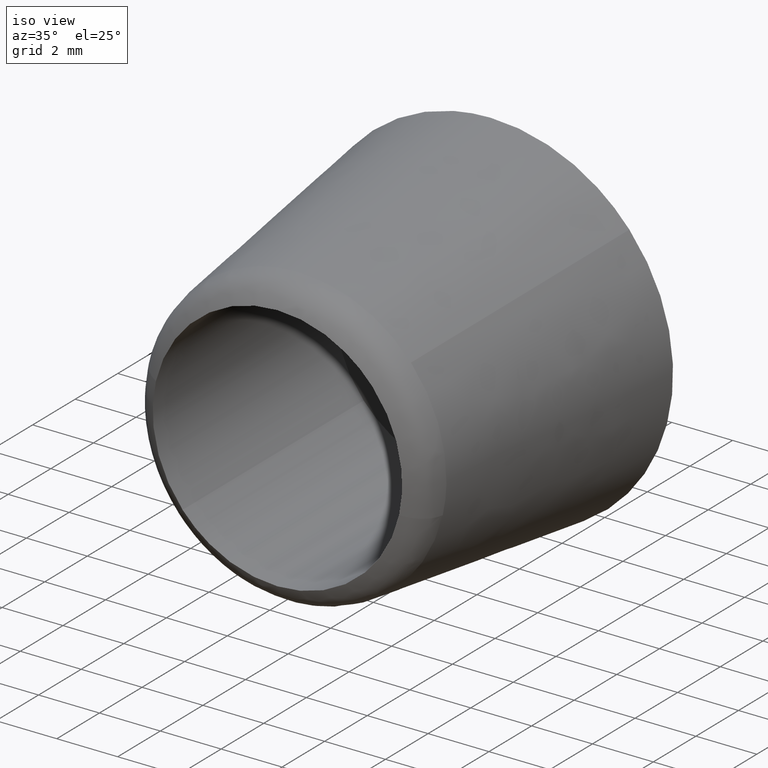
[diagram: clean part render]
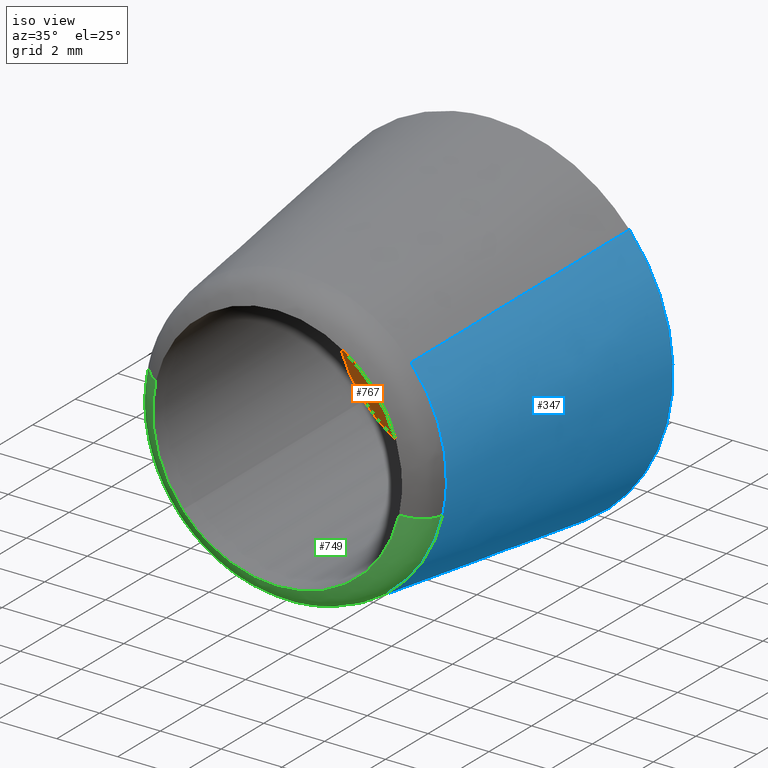
[diagram: same view with three faces highlighted in distinct colors, each labeled with its STEP entity id]
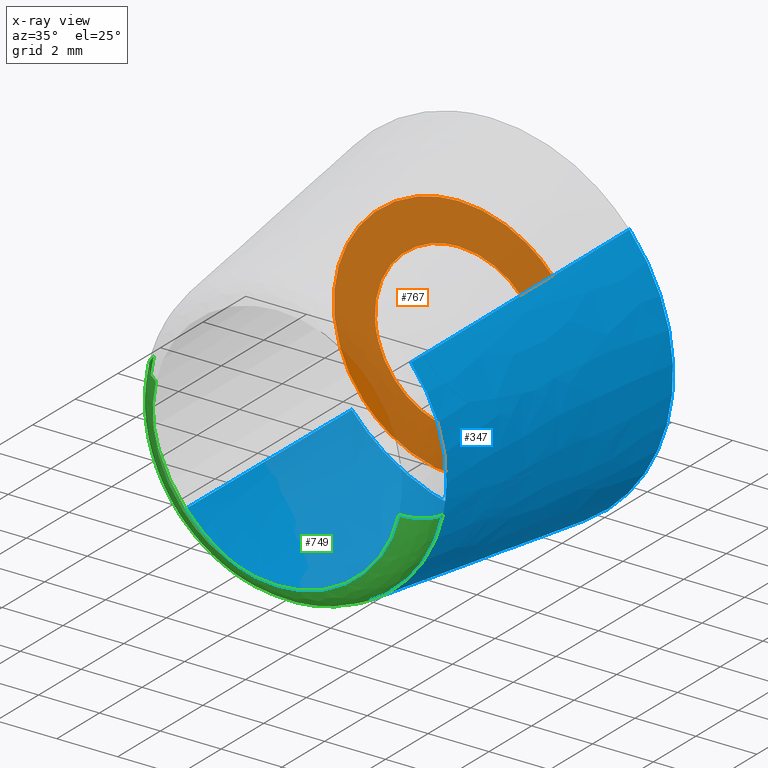
[diagram: x-ray of the same camera — body ghosted, the three highlighted faces saturated]
A machine part, iso view with three faces highlighted in distinct colors.
The next image is the same camera in x-ray (body ghosted, the three faces saturated) — at least one of them is partly hidden behind the body in this view.
Their STEP definitions:

[orange] entity #767 — the highlighted face is a freeform B-spline surface patch.
#66=CARTESIAN_POINT('',(2.730776731083356,4.981067E-014,0.324589656263510));
#67=VERTEX_POINT('',#66);
#68=CARTESIAN_POINT('',(0.0,0.0,-2.750000000000000));
#69=VERTEX_POINT('',#68);
#70=CARTESIAN_POINT('',(2.730776731083356,4.981067E-014,0.324589656263510));
#71=CARTESIAN_POINT('',(2.750000000000000,0.0,0.162864060793226));
#72=CARTESIAN_POINT('',(2.750000000000000,0.0,0.0));
#73=CARTESIAN_POINT('',(2.750000000000000,0.0,-2.750000000000000));
#74=CARTESIAN_POINT('',(0.0,0.0,-2.750000000000000));
#82=(BOUNDED_CURVE()B_SPLINE_CURVE(2,(#70,#71,#72,#73,#74),.UNSPECIFIED.,.F.,.U.)B_SPLINE_CURVE_WITH_KNOTS((3,2,3),(0.229562751335135,0.250000000000000,0.500000000000000),.UNSPECIFIED.)CURVE()GEOMETRIC_REPRESENTATION_ITEM()RATIONAL_B_SPLINE_CURVE((0.956027298726181,0.976056273819427,1.0,0.707106781186548,1.0))REPRESENTATION_ITEM(''));
#83=EDGE_CURVE('',#67,#69,#82,.T.);
#124=CARTESIAN_POINT('',(-2.744870732754064,-2.588207E-015,-0.167882877238264));
#125=VERTEX_POINT('',#124);
#131=CARTESIAN_POINT('',(0.0,0.0,-2.750000000000000));
#132=CARTESIAN_POINT('',(-2.586942829303095,0.0,-2.750000000000000));
#133=CARTESIAN_POINT('',(-2.744870732754064,-2.588207E-015,-0.167882877238264));
#141=(BOUNDED_CURVE()B_SPLINE_CURVE(2,(#131,#132,#133),.UNSPECIFIED.,.F.,.U.)B_SPLINE_CURVE_WITH_KNOTS((3,3),(0.500000000000000,0.739333038490830),.UNSPECIFIED.)CURVE()GEOMETRIC_REPRESENTATION_ITEM()RATIONAL_B_SPLINE_CURVE((1.0,0.719603903952068,0.976072205089081))REPRESENTATION_ITEM(''));
#142=EDGE_CURVE('',#69,#125,#141,.T.);
#169=CARTESIAN_POINT('',(0.0,0.0,2.750000000000000));
#170=VERTEX_POINT('',#169);
#171=CARTESIAN_POINT('',(0.0,0.0,2.750000000000000));
#172=CARTESIAN_POINT('',(2.442483989754464,0.0,2.750000000000000));
#173=CARTESIAN_POINT('',(2.730776731083356,4.981067E-014,0.324589656263510));
#181=(BOUNDED_CURVE()B_SPLINE_CURVE(2,(#171,#172,#173),.UNSPECIFIED.,.F.,.U.)B_SPLINE_CURVE_WITH_KNOTS((3,3),(0.0,0.229562751335135),.UNSPECIFIED.)CURVE()GEOMETRIC_REPRESENTATION_ITEM()RATIONAL_B_SPLINE_CURVE((1.0,0.731050507367120,0.956027298726181))REPRESENTATION_ITEM(''));
#182=EDGE_CURVE('',#170,#67,#181,.T.);
#184=CARTESIAN_POINT('',(-2.744870732754063,-2.588207E-015,-0.167882877238264));
#185=CARTESIAN_POINT('',(-2.750000000000000,0.0,-0.084019490888021));
#186=CARTESIAN_POINT('',(-2.750000000000000,0.0,0.0));
#187=CARTESIAN_POINT('',(-2.750000000000000,0.0,2.750000000000000));
#188=CARTESIAN_POINT('',(0.0,0.0,2.750000000000000));
#196=(BOUNDED_CURVE()B_SPLINE_CURVE(2,(#184,#185,#186,#187,#188),.UNSPECIFIED.,.F.,.U.)B_SPLINE_CURVE_WITH_KNOTS((3,2,3),(0.739333038490829,0.750000000000000,1.0),.UNSPECIFIED.)CURVE()GEOMETRIC_REPRESENTATION_ITEM()RATIONAL_B_SPLINE_CURVE((0.976072205089079,0.987502877234479,1.0,0.707106781186548,1.0))REPRESENTATION_ITEM(''));
#197=EDGE_CURVE('',#125,#170,#196,.T.);
#483=CARTESIAN_POINT('',(3.117664501418083,7.910339E-016,2.662736948441872));
#484=VERTEX_POINT('',#483);
#490=CARTESIAN_POINT('',(0.0,0.0,-4.100000000000001));
#491=VERTEX_POINT('',#490);
#492=CARTESIAN_POINT('',(3.117664501418083,7.910339E-016,2.662736948441872));
#493=CARTESIAN_POINT('',(4.100000000000001,0.0,1.512569781877143));
#494=CARTESIAN_POINT('',(4.100000000000001,0.0,0.0));
#495=CARTESIAN_POINT('',(4.100000000000001,0.0,-4.100000000000001));
#496=CARTESIAN_POINT('',(0.0,0.0,-4.100000000000001));
#504=(BOUNDED_CURVE()B_SPLINE_CURVE(2,(#492,#493,#494,#495,#496),.UNSPECIFIED.,.F.,.U.)B_SPLINE_CURVE_WITH_KNOTS((3,2,3),(0.136856843469953,0.250000000000000,0.500000000000000),.UNSPECIFIED.)CURVE()GEOMETRIC_REPRESENTATION_ITEM()RATIONAL_B_SPLINE_CURVE((0.854871032710290,0.867444546788801,1.0,0.707106781186547,1.0))REPRESENTATION_ITEM(''));
#505=EDGE_CURVE('',#484,#491,#504,.T.);
#507=CARTESIAN_POINT('',(-3.117664501418084,-2.081668E-016,-2.662736948441871));
#508=VERTEX_POINT('',#507);
#509=CARTESIAN_POINT('',(0.0,0.0,-4.100000000000001));
#510=CARTESIAN_POINT('',(-1.890125968421477,0.0,-4.100000000000001));
#511=CARTESIAN_POINT('',(-3.117664501418084,-2.081668E-016,-2.662736948441871));
#519=(BOUNDED_CURVE()B_SPLINE_CURVE(2,(#509,#510,#511),.UNSPECIFIED.,.F.,.U.)B_SPLINE_CURVE_WITH_KNOTS((3,3),(0.500000000000000,0.636856843469952),.UNSPECIFIED.)CURVE()GEOMETRIC_REPRESENTATION_ITEM()RATIONAL_B_SPLINE_CURVE((1.0,0.839662234397747,0.854871032710290))REPRESENTATION_ITEM(''));
#520=EDGE_CURVE('',#491,#508,#519,.T.);
#624=CARTESIAN_POINT('',(0.0,0.0,4.100000000000001));
#625=VERTEX_POINT('',#624);
#626=CARTESIAN_POINT('',(-3.117664501418084,-2.081668E-016,-2.662736948441871));
#627=CARTESIAN_POINT('',(-4.100000000000001,0.0,-1.512569781877140));
#628=CARTESIAN_POINT('',(-4.100000000000001,0.0,0.0));
#629=CARTESIAN_POINT('',(-4.100000000000001,0.0,4.100000000000001));
#630=CARTESIAN_POINT('',(0.0,0.0,4.100000000000001));
#638=(BOUNDED_CURVE()B_SPLINE_CURVE(2,(#626,#627,#628,#629,#630),.UNSPECIFIED.,.F.,.U.)B_SPLINE_CURVE_WITH_KNOTS((3,2,3),(0.636856843469953,0.750000000000000,1.0),.UNSPECIFIED.)CURVE()GEOMETRIC_REPRESENTATION_ITEM()RATIONAL_B_SPLINE_CURVE((0.854871032710290,0.867444546788801,1.0,0.707106781186547,1.0))REPRESENTATION_ITEM(''));
#639=EDGE_CURVE('',#508,#625,#638,.T.);
#641=CARTESIAN_POINT('',(0.0,0.0,4.100000000000001));
#642=CARTESIAN_POINT('',(1.890125968421488,0.0,4.100000000000001));
#643=CARTESIAN_POINT('',(3.117664501418083,7.910339E-016,2.662736948441872));
#651=(BOUNDED_CURVE()B_SPLINE_CURVE(2,(#641,#642,#643),.UNSPECIFIED.,.F.,.U.)B_SPLINE_CURVE_WITH_KNOTS((3,3),(0.0,0.136856843469953),.UNSPECIFIED.)CURVE()GEOMETRIC_REPRESENTATION_ITEM()RATIONAL_B_SPLINE_CURVE((1.0,0.839662234397746,0.854871032710290))REPRESENTATION_ITEM(''));
#652=EDGE_CURVE('',#625,#484,#651,.T.);
#750=CARTESIAN_POINT('',(-4.508338486180095,0.0,-4.509589907131077));
#751=CARTESIAN_POINT('',(-4.508338486180095,0.0,4.509590200385929));
#752=CARTESIAN_POINT('',(4.508338706121234,0.0,-4.509589907131077));
#753=CARTESIAN_POINT('',(4.508338706121234,0.0,4.509590200385929));
#754=B_SPLINE_SURFACE_WITH_KNOTS('',1,1,((#750,#752),(#751,#753)),.UNSPECIFIED.,.F.,.F.,.U.,(2,2),(2,2),(0.0,9.019180107517006),(0.0,9.016677192301328),.UNSPECIFIED.);
#755=ORIENTED_EDGE('',*,*,#639,.F.);
#756=ORIENTED_EDGE('',*,*,#520,.F.);
#757=ORIENTED_EDGE('',*,*,#505,.F.);
#758=ORIENTED_EDGE('',*,*,#652,.F.);
#759=EDGE_LOOP('',(#755,#756,#757,#758));
#760=FACE_OUTER_BOUND('',#759,.T.);
#761=ORIENTED_EDGE('',*,*,#142,.T.);
#762=ORIENTED_EDGE('',*,*,#197,.T.);
#763=ORIENTED_EDGE('',*,*,#182,.T.);
#764=ORIENTED_EDGE('',*,*,#83,.T.);
#765=EDGE_LOOP('',(#761,#762,#763,#764));
#766=FACE_BOUND('',#765,.T.);
#767=ADVANCED_FACE('',(#760,#766),#754,.F.);

[blue] entity #347 — the highlighted face is a freeform B-spline surface patch.
#234=CARTESIAN_POINT('',(3.683226864379310,-7.749889864050111,3.145772925046535));
#235=CARTESIAN_POINT('',(6.828999789425845,-7.749889864050111,-0.537453939332775));
#236=CARTESIAN_POINT('',(3.145772925046535,-7.749889864050112,-3.683226864379310));
#237=CARTESIAN_POINT('',(-0.537453939332775,-7.749889864050113,-6.828999789425845));
#238=CARTESIAN_POINT('',(-3.683226864379310,-7.749889864050113,-3.145772925046535));
#239=CARTESIAN_POINT('',(4.584416016830699,1.731247246601255,3.915461174104458));
#240=CARTESIAN_POINT('',(8.499877190935155,1.731247246601254,-0.668954842726241));
#241=CARTESIAN_POINT('',(3.915461174104458,1.731247246601254,-4.584416016830699));
#242=CARTESIAN_POINT('',(-0.668954842726241,1.731247246601253,-8.499877190935155));
#243=CARTESIAN_POINT('',(-4.584416016830699,1.731247246601253,-3.915461174104458));
#251=(BOUNDED_SURFACE()B_SPLINE_SURFACE(2,1,((#234,#239),(#235,#240),(#236,#241),(#237,#242),(#238,#243)),.UNSPECIFIED.,.F.,.F.,.U.)B_SPLINE_SURFACE_WITH_KNOTS((3,2,3),(2,2),(0.0,9.989018369856099,19.978036739712199),(0.0,9.554921391628739),.UNSPECIFIED.)GEOMETRIC_REPRESENTATION_ITEM()RATIONAL_B_SPLINE_SURFACE(((1.0,1.0),(0.707106781186548,0.707106781186548),(1.0,1.0),(0.707106781186548,0.707106781186548),(1.0,1.0)))REPRESENTATION_ITEM('')SURFACE());
#252=CARTESIAN_POINT('',(3.704671224964666,-7.524284922881888,3.164087242810569));
#253=VERTEX_POINT('',#252);
#254=CARTESIAN_POINT('',(4.747861204940968,-7.524282790642049,-1.092636051415756));
#255=VERTEX_POINT('',#254);
#256=CARTESIAN_POINT('',(3.704671224964665,-7.524284922881888,3.164087242810569));
#257=CARTESIAN_POINT('',(4.871964522502872,-7.524284143187063,1.797362154721066));
#258=CARTESIAN_POINT('',(4.871964603095937,-7.524283295292181,-0.000000040679555));
#259=CARTESIAN_POINT('',(4.871964627908664,-7.524283034245102,-0.553365984550682));
#260=CARTESIAN_POINT('',(4.747861204940968,-7.524282790642049,-1.092636051415756));
#268=(BOUNDED_CURVE()B_SPLINE_CURVE(2,(#256,#257,#258,#259,#260),.UNSPECIFIED.,.F.,.U.)B_SPLINE_CURVE_WITH_KNOTS((3,2,3),(0.136856859794303,0.250000000000000,0.288352803394359),.UNSPECIFIED.)CURVE()GEOMETRIC_REPRESENTATION_ITEM()RATIONAL_B_SPLINE_CURVE((0.854871036338518,0.867444565913966,1.0,0.955066895853227,0.923920275780370))REPRESENTATION_ITEM(''));
#269=EDGE_CURVE('',#253,#255,#268,.T.);
#270=ORIENTED_EDGE('',*,*,#269,.T.);
#271=CARTESIAN_POINT('',(0.0,-7.524282794195230,-4.871964650725590));
#272=VERTEX_POINT('',#271);
#273=CARTESIAN_POINT('',(4.747861204940968,-7.524282790642049,-1.092636051415756));
#274=CARTESIAN_POINT('',(3.878115755007902,-7.524282794195229,-4.871964650725589));
#275=CARTESIAN_POINT('',(0.0,-7.524282794195230,-4.871964650725590));
#283=(BOUNDED_CURVE()B_SPLINE_CURVE(2,(#273,#274,#275),.UNSPECIFIED.,.F.,.U.)B_SPLINE_CURVE_WITH_KNOTS((3,3),(0.288352803394359,0.500000000000000),.UNSPECIFIED.)CURVE()GEOMETRIC_REPRESENTATION_ITEM()RATIONAL_B_SPLINE_CURVE((0.923920275780370,0.752039885333320,1.0))REPRESENTATION_ITEM(''));
#284=EDGE_CURVE('',#255,#272,#283,.T.);
#285=ORIENTED_EDGE('',*,*,#284,.T.);
#286=CARTESIAN_POINT('',(-3.704671224964667,-7.524284922881888,-3.164087242810568));
#287=VERTEX_POINT('',#286);
#288=CARTESIAN_POINT('',(0.0,-7.524282794195230,-4.871964650725590));
#289=CARTESIAN_POINT('',(-2.246006779741699,-7.524283858538559,-4.871964564321126));
#290=CARTESIAN_POINT('',(-3.704671224964666,-7.524284922881888,-3.164087242810568));
#298=(BOUNDED_CURVE()B_SPLINE_CURVE(2,(#288,#289,#290),.UNSPECIFIED.,.F.,.U.)B_SPLINE_CURVE_WITH_KNOTS((3,3),(0.500000000000000,0.636856859794303),.UNSPECIFIED.)CURVE()GEOMETRIC_REPRESENTATION_ITEM()RATIONAL_B_SPLINE_CURVE((1.0,0.839662215272581,0.854871036338518))REPRESENTATION_ITEM(''));
#299=EDGE_CURVE('',#272,#287,#298,.T.);
#300=ORIENTED_EDGE('',*,*,#299,.T.);
#301=CARTESIAN_POINT('',(-4.562435850056587,1.499999495957191,-3.896688126865445));
#302=VERTEX_POINT('',#301);
#303=CARTESIAN_POINT('',(-3.704671224964667,-7.524284922881888,-3.164087242810568));
#304=CARTESIAN_POINT('',(-4.562435850056587,1.499999495957191,-3.896688126865445));
#305=QUASI_UNIFORM_CURVE('',1,(#303,#304),.UNSPECIFIED.,.F.,.U.);
#306=EDGE_CURVE('',#287,#302,#305,.T.);
#307=ORIENTED_EDGE('',*,*,#306,.T.);
#308=CARTESIAN_POINT('',(0.0,1.500000000000000,-6.0));
#309=VERTEX_POINT('',#308);
#310=CARTESIAN_POINT('',(0.0,1.500000000000000,-6.0));
#311=CARTESIAN_POINT('',(-2.766038081416517,1.500000000000000,-6.000000000000001));
#312=CARTESIAN_POINT('',(-4.562435850056587,1.499999495957191,-3.896688126865444));
#320=(BOUNDED_CURVE()B_SPLINE_CURVE(2,(#310,#311,#312),.UNSPECIFIED.,.F.,.U.)B_SPLINE_CURVE_WITH_KNOTS((3,3),(0.500000000000000,0.636856846745670),.UNSPECIFIED.)CURVE()GEOMETRIC_REPRESENTATION_ITEM()RATIONAL_B_SPLINE_CURVE((1.0,0.839662230560006,0.854871033438346))REPRESENTATION_ITEM(''));
#321=EDGE_CURVE('',#309,#302,#320,.T.);
#322=ORIENTED_EDGE('',*,*,#321,.F.);
#323=CARTESIAN_POINT('',(4.562435850056586,1.499999495957190,3.896688126865445));
#324=VERTEX_POINT('',#323);
#325=CARTESIAN_POINT('',(4.562435850056586,1.499999495957190,3.896688126865445));
#326=CARTESIAN_POINT('',(6.000000000000001,1.500000000000000,2.213516680087875));
#327=CARTESIAN_POINT('',(6.0,1.500000000000000,0.0));
#328=CARTESIAN_POINT('',(6.0,1.500000000000000,-6.0));
#329=CARTESIAN_POINT('',(0.0,1.500000000000000,-6.0));
#337=(BOUNDED_CURVE()B_SPLINE_CURVE(2,(#325,#326,#327,#328,#329),.UNSPECIFIED.,.F.,.U.)B_SPLINE_CURVE_WITH_KNOTS((3,2,3),(0.136856846745670,0.250000000000000,0.500000000000000),.UNSPECIFIED.)CURVE()GEOMETRIC_REPRESENTATION_ITEM()RATIONAL_B_SPLINE_CURVE((0.854871033438346,0.867444550626542,1.0,0.707106781186548,1.0))REPRESENTATION_ITEM(''));
#338=EDGE_CURVE('',#324,#309,#337,.T.);
#339=ORIENTED_EDGE('',*,*,#338,.F.);
#340=CARTESIAN_POINT('',(3.704671224964666,-7.524284922881888,3.164087242810569));
#341=CARTESIAN_POINT('',(4.562435850056586,1.499999495957190,3.896688126865445));
#342=QUASI_UNIFORM_CURVE('',1,(#340,#341),.UNSPECIFIED.,.F.,.U.);
#343=EDGE_CURVE('',#253,#324,#342,.T.);
#344=ORIENTED_EDGE('',*,*,#343,.F.);
#345=EDGE_LOOP('',(#270,#285,#300,#307,#322,#339,#344));
#346=FACE_OUTER_BOUND('',#345,.T.);
#347=ADVANCED_FACE('',(#346),#251,.T.);

[green] entity #749 — the highlighted face is a freeform B-spline surface patch.
#254=CARTESIAN_POINT('',(4.747861204940968,-7.524282790642049,-1.092636051415756));
#255=VERTEX_POINT('',#254);
#271=CARTESIAN_POINT('',(0.0,-7.524282794195230,-4.871964650725590));
#272=VERTEX_POINT('',#271);
#273=CARTESIAN_POINT('',(4.747861204940968,-7.524282790642049,-1.092636051415756));
#274=CARTESIAN_POINT('',(3.878115755007902,-7.524282794195229,-4.871964650725589));
#275=CARTESIAN_POINT('',(0.0,-7.524282794195230,-4.871964650725590));
#283=(BOUNDED_CURVE()B_SPLINE_CURVE(2,(#273,#274,#275),.UNSPECIFIED.,.F.,.U.)B_SPLINE_CURVE_WITH_KNOTS((3,3),(0.288352803394359,0.500000000000000),.UNSPECIFIED.)CURVE()GEOMETRIC_REPRESENTATION_ITEM()RATIONAL_B_SPLINE_CURVE((0.923920275780370,0.752039885333320,1.0))REPRESENTATION_ITEM(''));
#284=EDGE_CURVE('',#255,#272,#283,.T.);
#286=CARTESIAN_POINT('',(-3.704671224964667,-7.524284922881888,-3.164087242810568));
#287=VERTEX_POINT('',#286);
#288=CARTESIAN_POINT('',(0.0,-7.524282794195230,-4.871964650725590));
#289=CARTESIAN_POINT('',(-2.246006779741699,-7.524283858538559,-4.871964564321126));
#290=CARTESIAN_POINT('',(-3.704671224964666,-7.524284922881888,-3.164087242810568));
#298=(BOUNDED_CURVE()B_SPLINE_CURVE(2,(#288,#289,#290),.UNSPECIFIED.,.F.,.U.)B_SPLINE_CURVE_WITH_KNOTS((3,3),(0.500000000000000,0.636856859794303),.UNSPECIFIED.)CURVE()GEOMETRIC_REPRESENTATION_ITEM()RATIONAL_B_SPLINE_CURVE((1.0,0.839662215272581,0.854871036338518))REPRESENTATION_ITEM(''));
#299=EDGE_CURVE('',#272,#287,#298,.T.);
#413=CARTESIAN_POINT('',(-4.747861204940969,-7.524282790642049,1.092636051415755));
#414=VERTEX_POINT('',#413);
#415=CARTESIAN_POINT('',(-3.704671224964666,-7.524284922881888,-3.164087242810568));
#416=CARTESIAN_POINT('',(-4.871964522502873,-7.524284143187063,-1.797362154721066));
#417=CARTESIAN_POINT('',(-4.871964603095937,-7.524283295292181,0.000000040679555));
#418=CARTESIAN_POINT('',(-4.871964627908664,-7.524283034245102,0.553365984550682));
#419=CARTESIAN_POINT('',(-4.747861204940969,-7.524282790642049,1.092636051415755));
#427=(BOUNDED_CURVE()B_SPLINE_CURVE(2,(#415,#416,#417,#418,#419),.UNSPECIFIED.,.F.,.U.)B_SPLINE_CURVE_WITH_KNOTS((3,2,3),(0.636856859794303,0.750000000000000,0.788352803394359),.UNSPECIFIED.)CURVE()GEOMETRIC_REPRESENTATION_ITEM()RATIONAL_B_SPLINE_CURVE((0.854871036338518,0.867444565913966,1.0,0.955066895853227,0.923920275780370))REPRESENTATION_ITEM(''));
#428=EDGE_CURVE('',#287,#414,#427,.T.);
#466=CARTESIAN_POINT('',(3.995560178538304,-8.499999999954829,-0.919510119940747));
#467=VERTEX_POINT('',#466);
#522=CARTESIAN_POINT('',(-3.117664501935782,-8.500000000000000,-2.662736947835723));
#523=VERTEX_POINT('',#522);
#529=CARTESIAN_POINT('',(0.0,-8.500000000000000,-4.100000000000001));
#530=VERTEX_POINT('',#529);
#531=CARTESIAN_POINT('',(0.0,-8.500000000000000,-4.100000000000001));
#532=CARTESIAN_POINT('',(-1.890125969388043,-8.500000000000000,-4.100000000000001));
#533=CARTESIAN_POINT('',(-3.117664501935783,-8.500000000000000,-2.662736947835723));
#541=(BOUNDED_CURVE()B_SPLINE_CURVE(2,(#531,#532,#533),.UNSPECIFIED.,.F.,.U.)B_SPLINE_CURVE_WITH_KNOTS((3,3),(0.500000000000000,0.636856843528717),.UNSPECIFIED.)CURVE()GEOMETRIC_REPRESENTATION_ITEM()RATIONAL_B_SPLINE_CURVE((1.0,0.839662234328901,0.854871032723351))REPRESENTATION_ITEM(''));
#542=EDGE_CURVE('',#530,#523,#541,.T.);
#544=CARTESIAN_POINT('',(3.995560178538303,-8.499999999954829,-0.919510119940747));
#545=CARTESIAN_POINT('',(3.263624604808229,-8.500000000000002,-4.100000000000001));
#546=CARTESIAN_POINT('',(0.0,-8.500000000000000,-4.100000000000001));
#554=(BOUNDED_CURVE()B_SPLINE_CURVE(2,(#544,#545,#546),.UNSPECIFIED.,.F.,.U.)B_SPLINE_CURVE_WITH_KNOTS((3,3),(0.288352912383625,0.500000000000000),.UNSPECIFIED.)CURVE()GEOMETRIC_REPRESENTATION_ITEM()RATIONAL_B_SPLINE_CURVE((0.923920098758361,0.752040013022189,1.0))REPRESENTATION_ITEM(''));
#555=EDGE_CURVE('',#467,#530,#554,.T.);
#593=CARTESIAN_POINT('',(-3.995560178538303,-8.499999999954829,0.919510119940747));
#594=VERTEX_POINT('',#593);
#608=CARTESIAN_POINT('',(-3.117664501935783,-8.500000000000000,-2.662736947835723));
#609=CARTESIAN_POINT('',(-4.100000000000001,-8.500000000000000,-1.512569780971512));
#610=CARTESIAN_POINT('',(-4.100000000000001,-8.500000000000000,0.0));
#611=CARTESIAN_POINT('',(-4.100000000000001,-8.500000000000002,0.465686303189203));
#612=CARTESIAN_POINT('',(-3.995560178538303,-8.499999999954829,0.919510119940747));
#620=(BOUNDED_CURVE()B_SPLINE_CURVE(2,(#608,#609,#610,#611,#612),.UNSPECIFIED.,.F.,.U.)B_SPLINE_CURVE_WITH_KNOTS((3,2,3),(0.636856843528716,0.750000000000000,0.788352912383625),.UNSPECIFIED.)CURVE()GEOMETRIC_REPRESENTATION_ITEM()RATIONAL_B_SPLINE_CURVE((0.854871032723351,0.867444546857646,1.0,0.955066768164359,0.923920098758362))REPRESENTATION_ITEM(''));
#621=EDGE_CURVE('',#523,#594,#620,.T.);
#682=CARTESIAN_POINT('',(-3.995560178538303,-8.499999999954829,0.919510119940747));
#683=CARTESIAN_POINT('',(-4.659928070685239,-8.246132740432993,1.072401406322850));
#684=CARTESIAN_POINT('',(-4.747861204940969,-7.524282790642049,1.092636051415755));
#692=(BOUNDED_CURVE()B_SPLINE_CURVE(2,(#682,#683,#684),.UNSPECIFIED.,.F.,.U.)B_SPLINE_CURVE_WITH_KNOTS((3,3),(-1.649330415106230,-0.358933609606277),.UNSPECIFIED.)CURVE()GEOMETRIC_REPRESENTATION_ITEM()RATIONAL_B_SPLINE_CURVE((0.908643260048370,0.776293288692988,0.906958842672355))REPRESENTATION_ITEM(''));
#693=EDGE_CURVE('',#594,#414,#692,.T.);
#698=CARTESIAN_POINT('',(3.995560178538304,-8.499999999954829,-0.919510119940747));
#699=CARTESIAN_POINT('',(4.659928070685238,-8.246132740432991,-1.072401406322851));
#700=CARTESIAN_POINT('',(4.747861204940968,-7.524282790642049,-1.092636051415756));
#708=(BOUNDED_CURVE()B_SPLINE_CURVE(2,(#698,#699,#700),.UNSPECIFIED.,.F.,.U.)B_SPLINE_CURVE_WITH_KNOTS((3,3),(-1.649330415106229,-0.358933609606277),.UNSPECIFIED.)CURVE()GEOMETRIC_REPRESENTATION_ITEM()RATIONAL_B_SPLINE_CURVE((0.908643260048370,0.776293288692988,0.906958842672355))REPRESENTATION_ITEM(''));
#709=EDGE_CURVE('',#467,#255,#708,.T.);
#716=CARTESIAN_POINT('',(3.938765705699540,-8.520014010651194,-0.906439839357839));
#717=CARTESIAN_POINT('',(3.032325866341702,-8.520014010651192,-4.845205545057381));
#718=CARTESIAN_POINT('',(-0.906439839357839,-8.520014010651194,-3.938765705699540));
#719=CARTESIAN_POINT('',(-4.845205545057381,-8.520014010651192,-3.032325866341702));
#720=CARTESIAN_POINT('',(-3.938765705699540,-8.520014010651194,0.906439839357839));
#721=CARTESIAN_POINT('',(4.695963164774303,-8.275296623605327,-1.080695937447836));
#722=CARTESIAN_POINT('',(3.615267227326468,-8.275296623605327,-5.776659102222140));
#723=CARTESIAN_POINT('',(-1.080695937447835,-8.275296623605327,-4.695963164774303));
#724=CARTESIAN_POINT('',(-5.776659102222140,-8.275296623605327,-3.615267227326468));
#725=CARTESIAN_POINT('',(-4.695963164774303,-8.275296623605327,1.080695937447835));
#726=CARTESIAN_POINT('',(4.753784909147066,-7.462843943652347,-1.094002627054886));
#727=CARTESIAN_POINT('',(3.659782282092181,-7.462843943652349,-5.847787536201953));
#728=CARTESIAN_POINT('',(-1.094002627054885,-7.462843943652347,-4.753784909147066));
#729=CARTESIAN_POINT('',(-5.847787536201951,-7.462843943652349,-3.659782282092181));
#730=CARTESIAN_POINT('',(-4.753784909147066,-7.462843943652347,1.094002627054885));
#738=(BOUNDED_SURFACE()B_SPLINE_SURFACE(2,2,((#716,#721,#726),(#717,#722,#727),(#718,#723,#728),(#719,#724,#729),(#720,#725,#730)),.UNSPECIFIED.,.F.,.F.,.U.)B_SPLINE_SURFACE_WITH_KNOTS((3,2,3),(3,3),(0.0,8.082207836271737,16.164415672543470),(0.0,1.475319972099379),.UNSPECIFIED.)GEOMETRIC_REPRESENTATION_ITEM()RATIONAL_B_SPLINE_SURFACE(((0.922521264708938,0.762499442104284,0.920668531682852),(0.652321042064480,0.539168526162898,0.651010961978007),(0.922521264708938,0.762499442104284,0.920668531682852),(0.652321042064480,0.539168526162898,0.651010961978007),(0.922521264708938,0.762499442104284,0.920668531682852)))REPRESENTATION_ITEM('')SURFACE());
#739=ORIENTED_EDGE('',*,*,#428,.F.);
#740=ORIENTED_EDGE('',*,*,#299,.F.);
#741=ORIENTED_EDGE('',*,*,#284,.F.);
#742=ORIENTED_EDGE('',*,*,#709,.F.);
#743=ORIENTED_EDGE('',*,*,#555,.T.);
#744=ORIENTED_EDGE('',*,*,#542,.T.);
#745=ORIENTED_EDGE('',*,*,#621,.T.);
#746=ORIENTED_EDGE('',*,*,#693,.T.);
#747=EDGE_LOOP('',(#739,#740,#741,#742,#743,#744,#745,#746));
#748=FACE_OUTER_BOUND('',#747,.T.);
#749=ADVANCED_FACE('',(#748),#738,.T.);